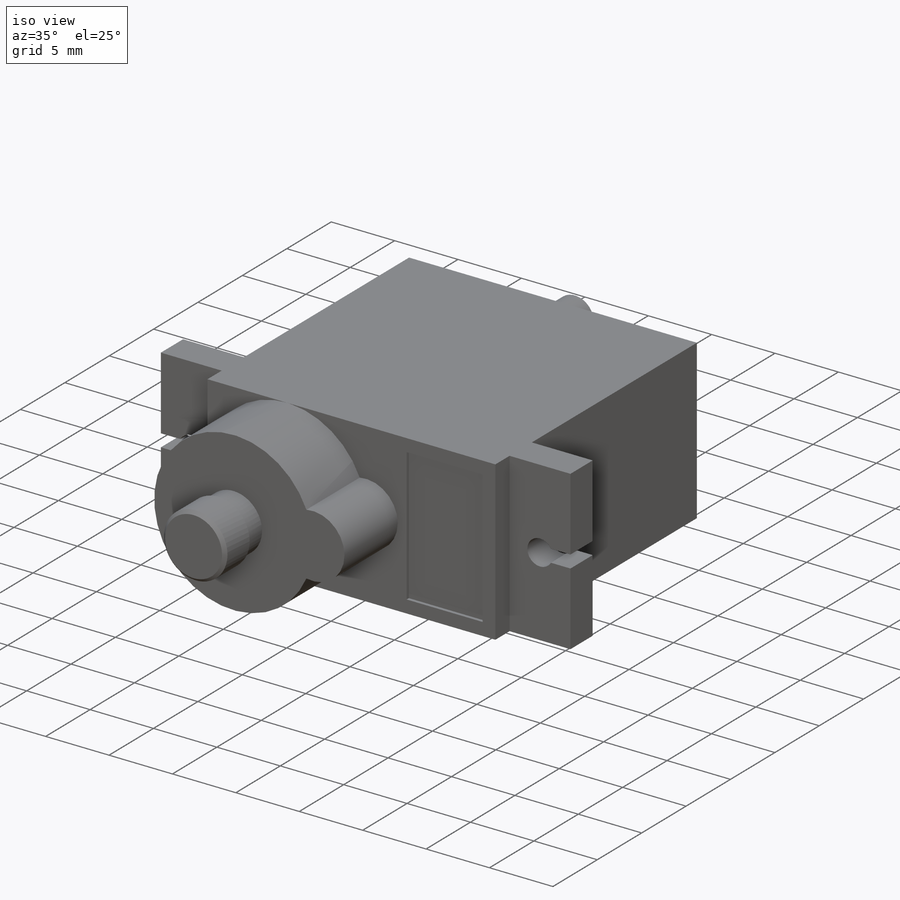
[diagram: iso view]
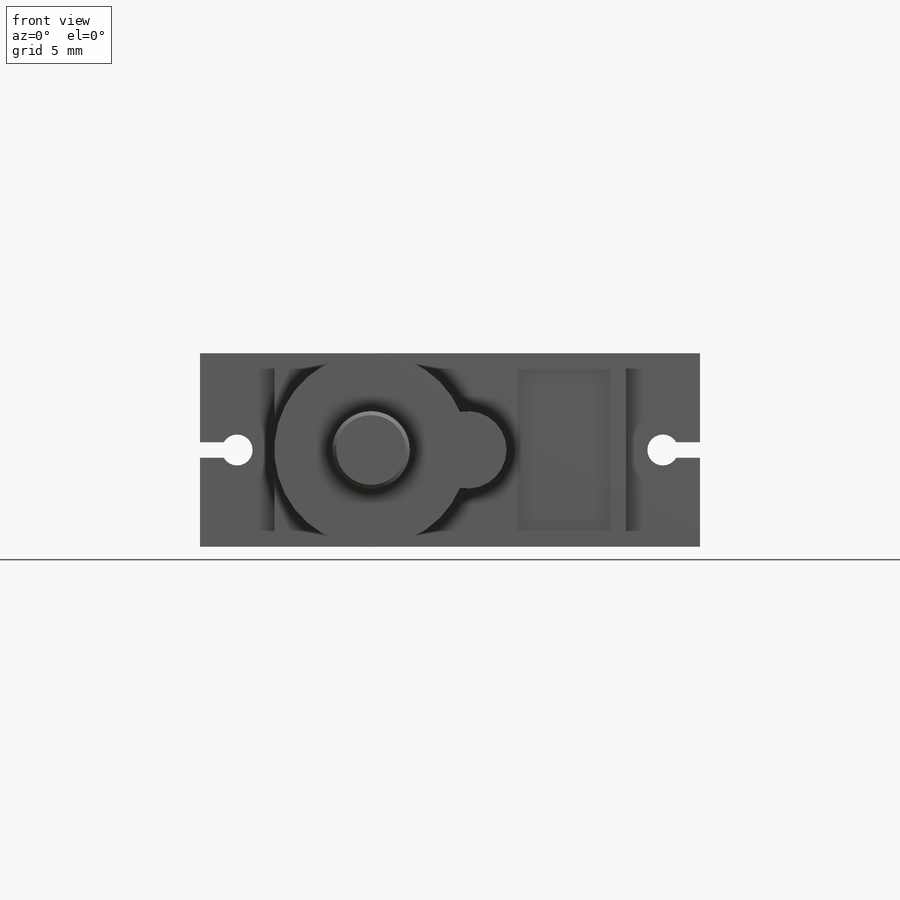
[diagram: front view]
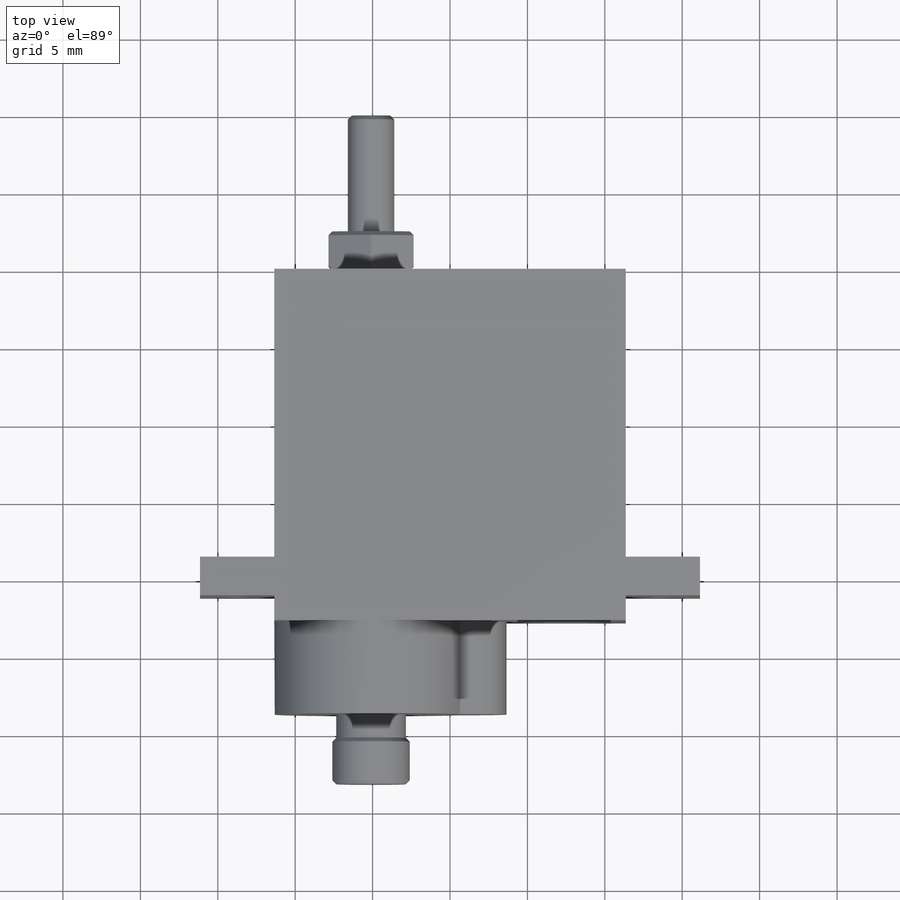
[diagram: top view]
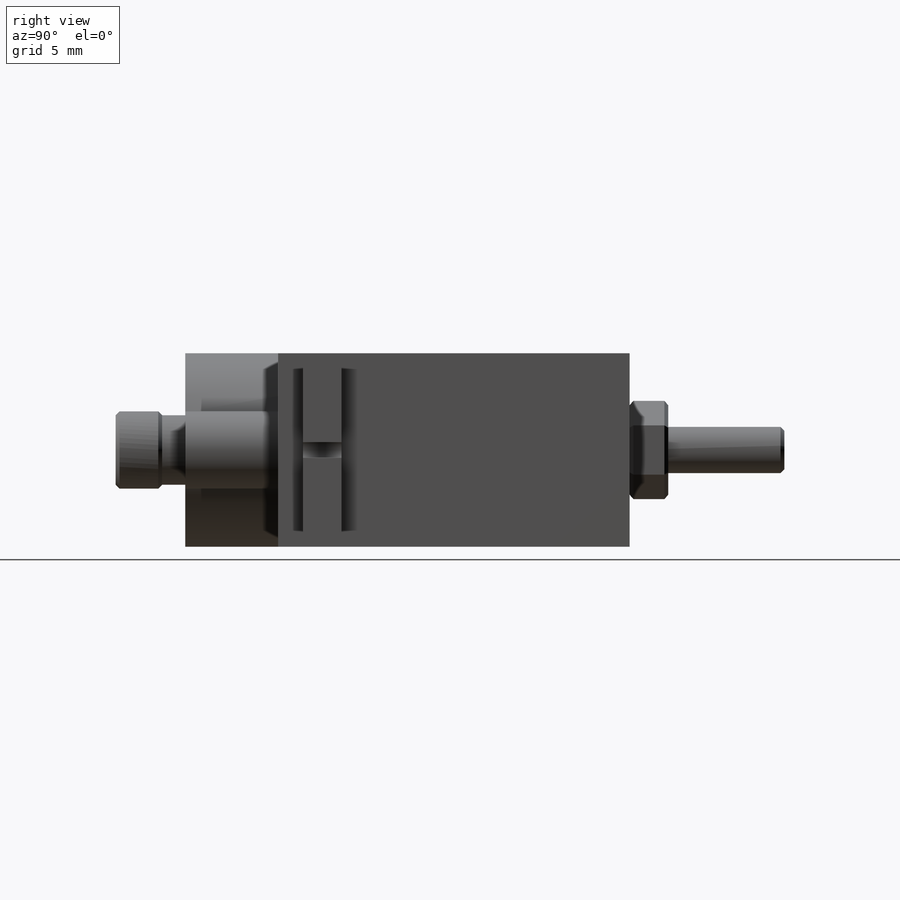
[diagram: right view]
SOLIDWORKS PART (.sldprt)
format: sldprt  version: not decoded by parser v0  size: 379,904 bytes
history: native  units: mm
features: sketch x12, extrude x8, chamfer x4, cut_extrude x2, material x1, plane x1 (+13 scaffold rows collapsed)
feature tree (41):
  scaffold x13  (default folders/planes/origin — collapsed)
  material  "Material <not specified>"
  sketch  "Sketch1"  dims[D1=22.7mm D2=12.5mm]
  extrude  "Boss-Extrude1"  Depth=18.6mm
  sketch  "Sketch2"  dims[D1=32.3mm]
  extrude  "Boss-Extrude2"  Depth=2.5mm
  sketch  "Sketch3"
  extrude  "Boss-Extrude3"  Depth=1.6mm
  sketch  "Sketch4"  dims[D1=6.0mm D2=1.0mm D3=1.0mm D4=1.0mm D5=22.7mm]
  sketch  "Sketch5"
  cut_extrude  "Cut-Extrude1"  Depth=0.25mm
  sketch  "Sketch6"  dims[D1=5.0mm D2=5.5mm]
  sketch  "Sketch7"
  extrude  "Boss-Extrude4"  Depth=6mm
  sketch  "Sketch8"  dims[D1=4.5mm]
  extrude  "Boss-Extrude5"  Depth=1.5mm
  sketch  "Sketch9"  dims[D1=5.0mm]
  extrude  "Boss-Extrude6"  Depth=3mm
  sketch  "Sketch10"  dims[c1.D1=2.0mm c1.D2=2.0mm c2.D1=12.5mm c2.D2=2.4mm c2.D3=2.4mm c2.D4=1.0mm]
  cut_extrude  "Cut-Extrude2"  [1 undecoded]
  sketch  "Sketch12"  dims[D1=3.0mm]
  extrude  "Boss-Extrude7"  Depth=10mm
  sketch  "Sketch13"  dims[D1=5.5mm]
  extrude  "Boss-Extrude8"  Depth=2.5mm
  chamfer  "Chamfer1"  Distance=0.25mm Angle=45deg
  chamfer  "Chamfer2"  Distance=0.25mm Angle=45deg
  chamfer  "Chamfer3"  Distance=0.25mm Angle=45deg
  chamfer  "Chamfer4"  Distance=0.25mm Angle=45deg
  plane  "Plane1"
decode coverage: 22 of 26 modeling features carry decoded parameters
note: 1 parameter value undecoded
note: suppression state not decoded; provenance and decode notes live in map.json
